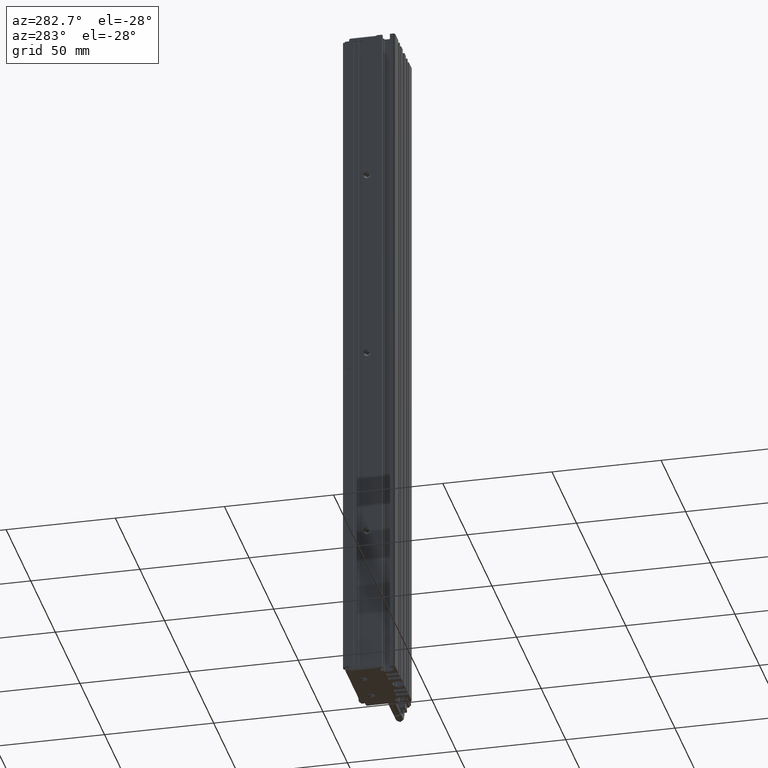
[diagram: clean part render]
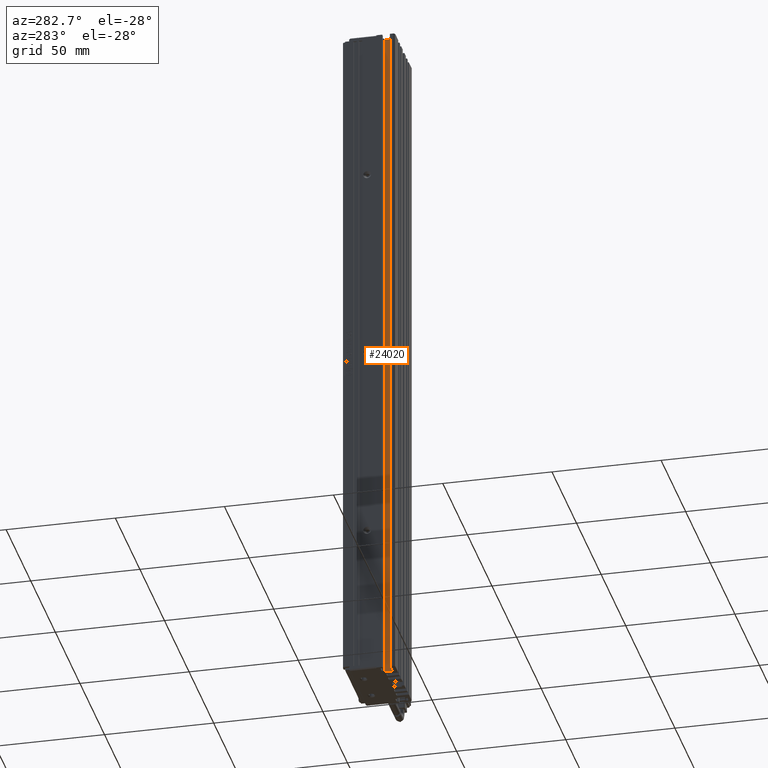
[diagram: same view with one face highlighted and labeled with its STEP entity id]
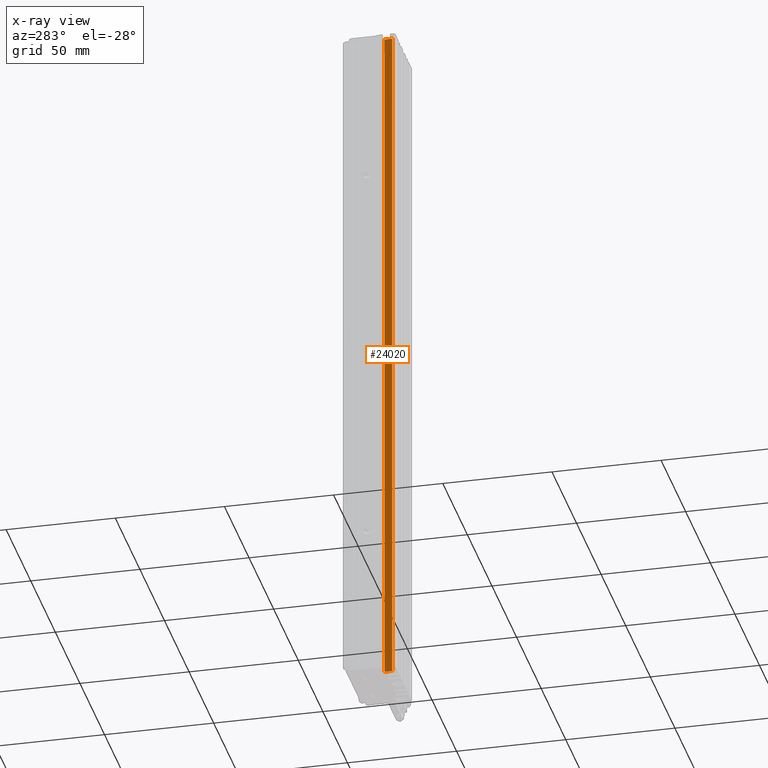
[diagram: x-ray of the same camera — body ghosted, the highlighted face saturated]
A machine part, auxiliary view. The second image highlights one B-rep face of the part: STEP entity #24020.
The next image is the same camera in x-ray: the body ghosted, the highlighted face saturated — about 0% of this face is hidden behind the body in this view.
In plain terms, the highlighted planar face has unit normal (1, 0, -0).
Its self-contained STEP definition (entity closure, byte-faithful):
#1469 = AXIS2_PLACEMENT_3D ( 'NONE', #86428, #100236, #37980 ) ;
#2595 = LINE ( 'NONE', #69553, #58279 ) ;
#4966 = EDGE_CURVE ( 'NONE', #25635, #22947, #123212, .T. ) ;
#22947 = VERTEX_POINT ( 'NONE', #93595 ) ;
#24020 = ADVANCED_FACE ( 'NONE', ( #53065 ), #34917, .F. ) ;
#25635 = VERTEX_POINT ( 'NONE', #111507 ) ;
#28626 = CARTESIAN_POINT ( 'NONE',  ( 28.22537974683543600, 7.083797468354437600, -275.0000000000000000 ) ) ;
#29096 = DIRECTION ( 'NONE',  ( 0.0000000000000000000, -0.0000000000000000000, 1.000000000000000000 ) ) ;
#29829 = LINE ( 'NONE', #30446, #44143 ) ;
#30211 = DIRECTION ( 'NONE',  ( -0.0000000000000000000, 0.0000000000000000000, -1.000000000000000000 ) ) ;
#30446 = CARTESIAN_POINT ( 'NONE',  ( 28.22537974683543600, 16.79073232304837400, 45.00000000000000000 ) ) ;
#34917 = PLANE ( 'NONE',  #1469 ) ;
#37980 = DIRECTION ( 'NONE',  ( -0.0000000000000000000, 0.0000000000000000000, -1.000000000000000000 ) ) ;
#44143 = VECTOR ( 'NONE', #29096, 1000.000000000000000 ) ;
#53065 = FACE_OUTER_BOUND ( 'NONE', #59135, .T. ) ;
#53143 = CARTESIAN_POINT ( 'NONE',  ( 28.22537974683543600, 7.083797468354437600, 45.00000000000000000 ) ) ;
#58279 = VECTOR ( 'NONE', #30211, 1000.000000000000000 ) ;
#59135 = EDGE_LOOP ( 'NONE', ( #90261, #87946, #101073, #74111 ) ) ;
#63452 = DIRECTION ( 'NONE',  ( -0.0000000000000000000, -1.000000000000000000, 0.0000000000000000000 ) ) ;
#69553 = CARTESIAN_POINT ( 'NONE',  ( 28.22537974683543600, 13.29073232304836900, 45.00000000000000000 ) ) ;
#74111 = ORIENTED_EDGE ( 'NONE', *, *, #4966, .T. ) ;
#74642 = VECTOR ( 'NONE', #63452, 1000.000000000000000 ) ;
#75980 = CARTESIAN_POINT ( 'NONE',  ( 28.22537974683543600, 13.29073232304836900, 45.00000000000000000 ) ) ;
#77677 = EDGE_CURVE ( 'NONE', #25635, #90623, #29829, .T. ) ;
#85788 = EDGE_CURVE ( 'NONE', #112306, #22947, #2595, .T. ) ;
#86428 = CARTESIAN_POINT ( 'NONE',  ( 28.22537974683543600, 7.083797468354437600, 45.00000000000000000 ) ) ;
#87946 = ORIENTED_EDGE ( 'NONE', *, *, #96755, .F. ) ;
#90261 = ORIENTED_EDGE ( 'NONE', *, *, #85788, .F. ) ;
#90623 = VERTEX_POINT ( 'NONE', #100569 ) ;
#93595 = CARTESIAN_POINT ( 'NONE',  ( 28.22537974683543600, 13.29073232304836900, -275.0000000000000000 ) ) ;
#96755 = EDGE_CURVE ( 'NONE', #90623, #112306, #100361, .T. ) ;
#100202 = DIRECTION ( 'NONE',  ( -0.0000000000000000000, -1.000000000000000000, 0.0000000000000000000 ) ) ;
#100236 = DIRECTION ( 'NONE',  ( 1.000000000000000000, 0.0000000000000000000, -0.0000000000000000000 ) ) ;
#100361 = LINE ( 'NONE', #53143, #74642 ) ;
#100569 = CARTESIAN_POINT ( 'NONE',  ( 28.22537974683543600, 16.79073232304837400, 45.00000000000000000 ) ) ;
#101073 = ORIENTED_EDGE ( 'NONE', *, *, #77677, .F. ) ;
#110347 = VECTOR ( 'NONE', #100202, 1000.000000000000000 ) ;
#111507 = CARTESIAN_POINT ( 'NONE',  ( 28.22537974683543600, 16.79073232304837400, -275.0000000000000000 ) ) ;
#112306 = VERTEX_POINT ( 'NONE', #75980 ) ;
#123212 = LINE ( 'NONE', #28626, #110347 ) ;